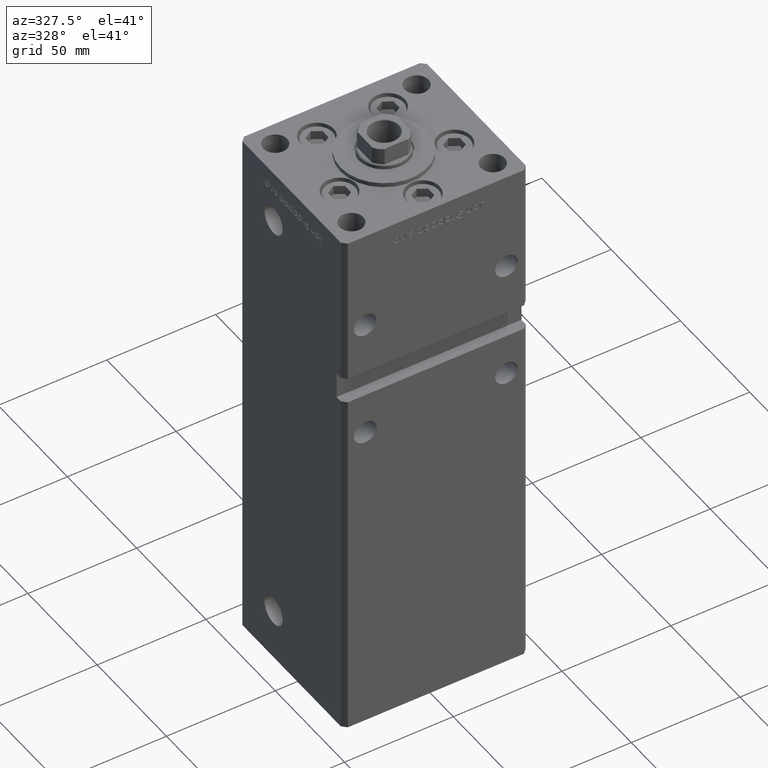
[diagram: clean part render]
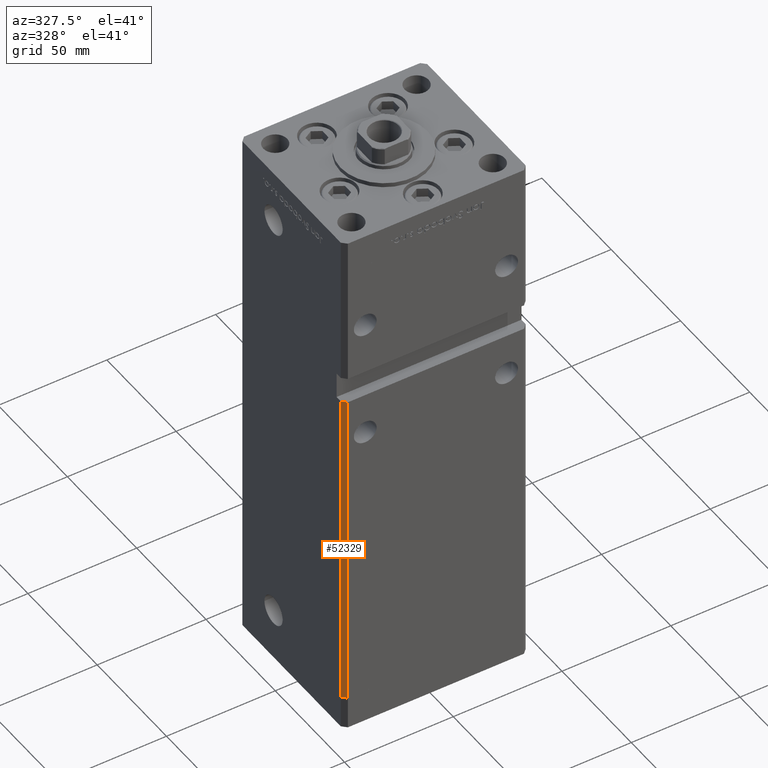
[diagram: same view with one face highlighted and labeled with its STEP entity id]
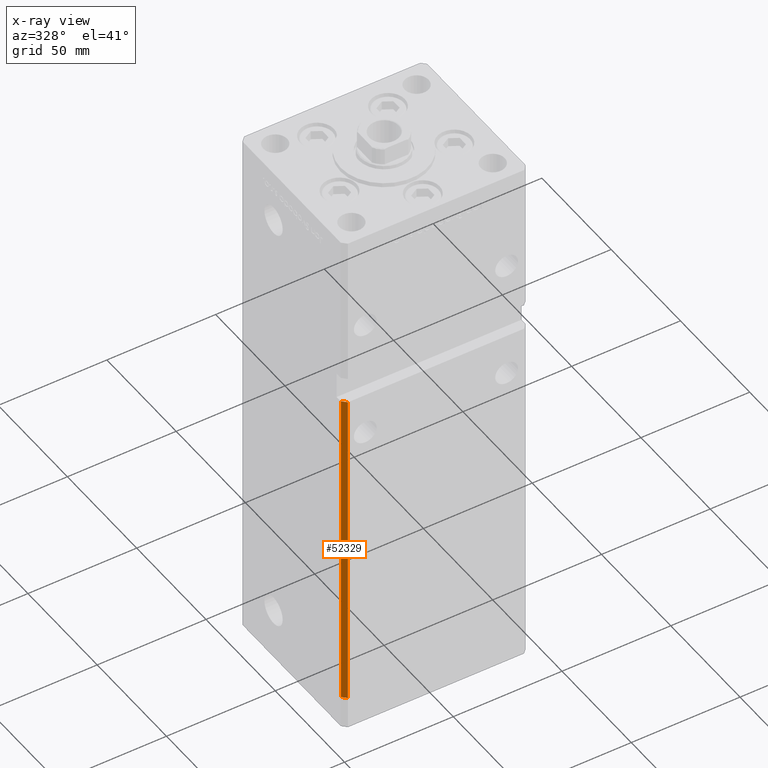
[diagram: x-ray of the same camera — body ghosted, the highlighted face saturated]
A machine part, auxiliary view. The second image highlights one B-rep face of the part: STEP entity #52329.
The next image is the same camera in x-ray: the body ghosted, the highlighted face saturated — about 0% of this face is hidden behind the body in this view.
In plain terms, the highlighted planar face has unit normal (0.7071, 0.7071, 0).
Its self-contained STEP definition (entity closure, byte-faithful):
#184 = LINE ( 'NONE', #16603, #3134 ) ;
#3134 = VECTOR ( 'NONE', #17405, 1000.000000000000114 ) ;
#3261 = ORIENTED_EDGE ( 'NONE', *, *, #30802, .T. ) ;
#4269 = DIRECTION ( 'NONE',  ( 0.7071067811865475727, 0.7071067811865475727, -0.000000000000000000 ) ) ;
#4531 = CARTESIAN_POINT ( 'NONE',  ( -42.49999999999998579, -35.50000000000000711, 218.5000000000000000 ) ) ;
#4889 = VERTEX_POINT ( 'NONE', #47108 ) ;
#5075 = DIRECTION ( 'NONE',  ( -0.7071067811865474617, 0.7071067811865474617, 0.000000000000000000 ) ) ;
#5494 = EDGE_LOOP ( 'NONE', ( #34500, #25798, #3261, #13716 ) ) ;
#11362 = VECTOR ( 'NONE', #20453, 1000.000000000000114 ) ;
#11830 = EDGE_CURVE ( 'NONE', #29690, #4889, #48934, .T. ) ;
#12117 = CARTESIAN_POINT ( 'NONE',  ( -42.49999999999998579, -35.50000000000000711, 152.0000000000000284 ) ) ;
#13716 = ORIENTED_EDGE ( 'NONE', *, *, #41135, .T. ) ;
#14588 = CARTESIAN_POINT ( 'NONE',  ( -42.49999999999998579, -35.50000000000000711, 0.000000000000000000 ) ) ;
#15834 = LINE ( 'NONE', #4531, #45891 ) ;
#16603 = CARTESIAN_POINT ( 'NONE',  ( -42.49999999999998579, -35.50000000000000711, 0.000000000000000000 ) ) ;
#17405 = DIRECTION ( 'NONE',  ( 0.7071067811865474617, -0.7071067811865474617, 0.000000000000000000 ) ) ;
#20453 = DIRECTION ( 'NONE',  ( -0.7071067811865474617, 0.7071067811865474617, 0.000000000000000000 ) ) ;
#20925 = DIRECTION ( 'NONE',  ( -0.000000000000000000, -0.000000000000000000, -1.000000000000000000 ) ) ;
#22914 = EDGE_CURVE ( 'NONE', #29690, #45207, #47794, .T. ) ;
#25798 = ORIENTED_EDGE ( 'NONE', *, *, #11830, .T. ) ;
#29690 = VERTEX_POINT ( 'NONE', #53197 ) ;
#30802 = EDGE_CURVE ( 'NONE', #4889, #32446, #15834, .T. ) ;
#32182 = DIRECTION ( 'NONE',  ( -0.000000000000000000, -0.000000000000000000, -1.000000000000000000 ) ) ;
#32446 = VERTEX_POINT ( 'NONE', #14588 ) ;
#34363 = AXIS2_PLACEMENT_3D ( 'NONE', #41095, #4269, #5075 ) ;
#34500 = ORIENTED_EDGE ( 'NONE', *, *, #22914, .F. ) ;
#38225 = VECTOR ( 'NONE', #32182, 1000.000000000000000 ) ;
#40026 = CARTESIAN_POINT ( 'NONE',  ( -40.49999999999998579, -37.50000000000000711, 0.000000000000000000 ) ) ;
#41095 = CARTESIAN_POINT ( 'NONE',  ( -42.49999999999998579, -35.50000000000000711, 218.5000000000000000 ) ) ;
#41135 = EDGE_CURVE ( 'NONE', #32446, #45207, #184, .T. ) ;
#41365 = FACE_OUTER_BOUND ( 'NONE', #5494, .T. ) ;
#45207 = VERTEX_POINT ( 'NONE', #40026 ) ;
#45891 = VECTOR ( 'NONE', #20925, 1000.000000000000000 ) ;
#47108 = CARTESIAN_POINT ( 'NONE',  ( -42.49999999999998579, -35.49999999999996447, 152.0000000000000284 ) ) ;
#47794 = LINE ( 'NONE', #48836, #38225 ) ;
#48836 = CARTESIAN_POINT ( 'NONE',  ( -40.49999999999998579, -37.50000000000000711, 218.5000000000000000 ) ) ;
#48934 = LINE ( 'NONE', #12117, #11362 ) ;
#49956 = PLANE ( 'NONE',  #34363 ) ;
#52329 = ADVANCED_FACE ( 'NONE', ( #41365 ), #49956, .F. ) ;
#53197 = CARTESIAN_POINT ( 'NONE',  ( -40.49999999999998579, -37.50000000000000711, 152.0000000000000284 ) ) ;